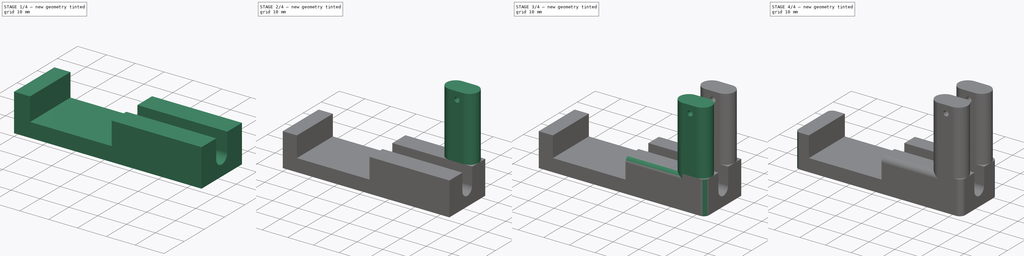
[diagram: build sequence overview — one tinted view per stage of 4, left to right]
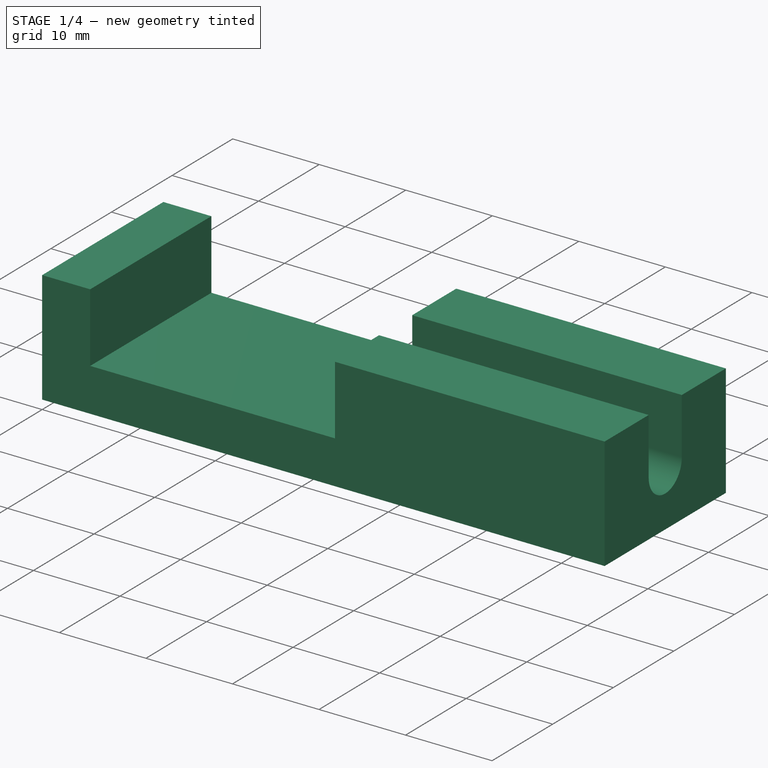
[diagram: stage 1 of 4 — iso view after this stage's code; geometry added in this stage tinted green]
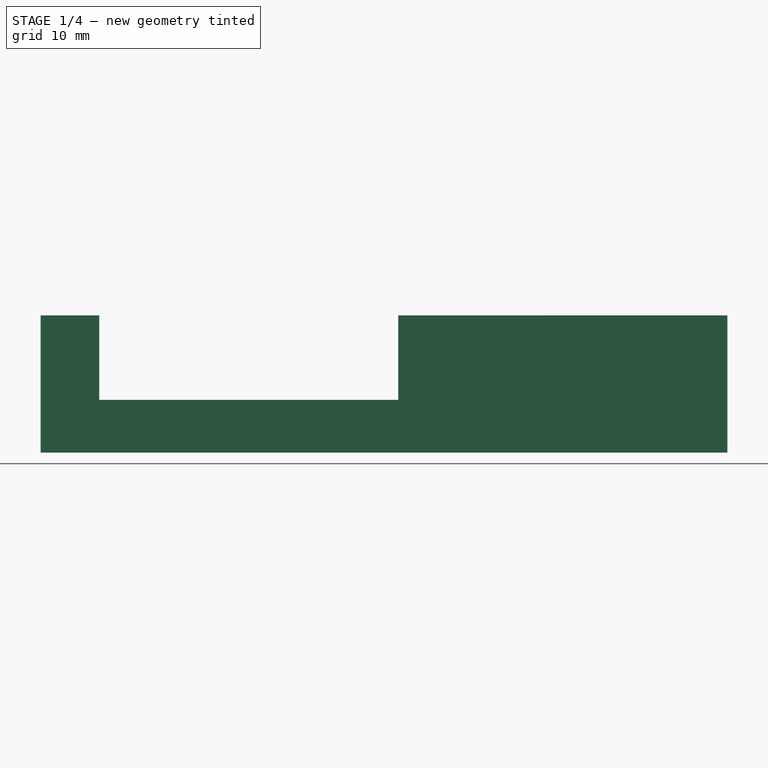
[diagram: stage 1 of 4 — front view after this stage's code; geometry added in this stage tinted green]
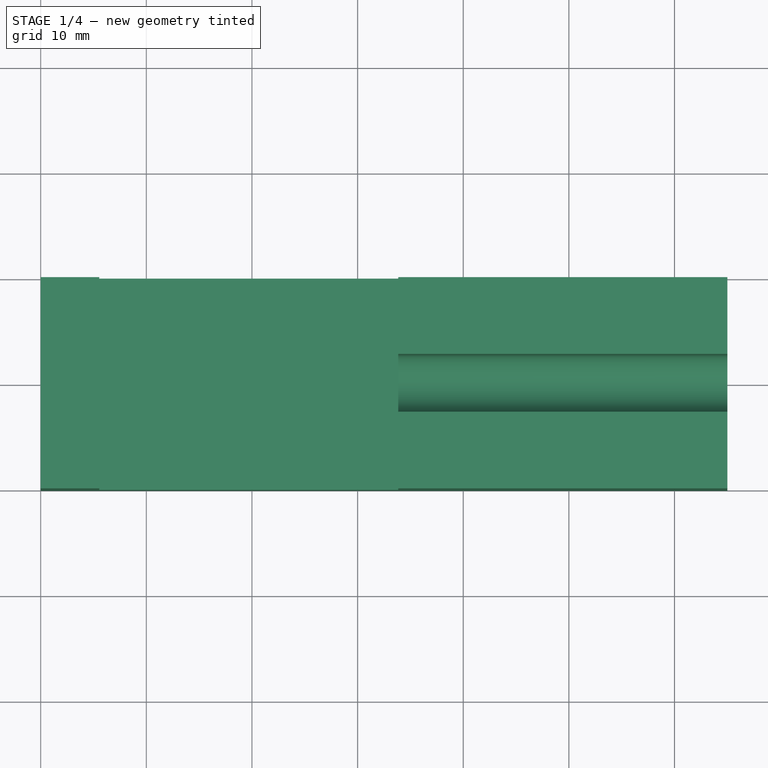
[diagram: stage 1 of 4 — top view after this stage's code; geometry added in this stage tinted green]
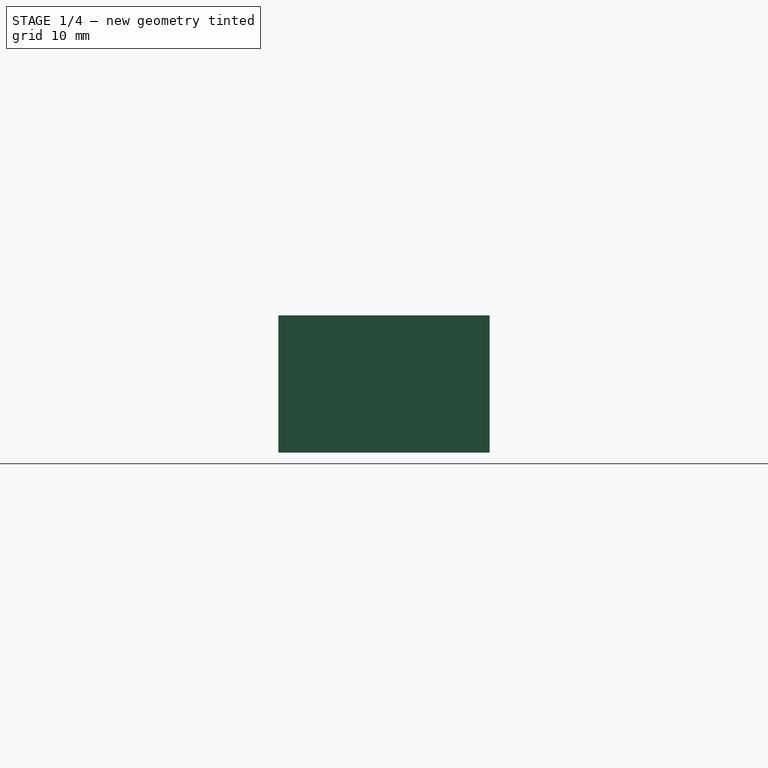
[diagram: stage 1 of 4 — right view after this stage's code; geometry added in this stage tinted green]
FCSTD DOCUMENT  (FreeCAD 0.16R6705 (Git))
Label: porta_slitta3
License: All rights reserved
LicenseURL: http://it.wikipedia.org/wiki/<copyright redacted>
objects: PartDesign::Fillet×6, Sketcher::SketchObject×5, PartDesign::Pad×3, App::MeasureDistance×3, PartDesign::Pocket×2, Part::Mirroring×1, Part::MultiFuse×1
note: 23 computed .brp shape members not serialized (recipe doc carries the construction recipe); baked Part::Feature solids carry a one-line shape summary decoded from their .brp

FEATURE [Sketcher::SketchObject] Sketch
  sketch-geometry (4):
    g0: LineSegment StartX=-30 StartY=10 StartZ=0 EndX=35 EndY=10 EndZ=0
    g1: LineSegment StartX=35 StartY=10 StartZ=0 EndX=35 EndY=-10 EndZ=0
    g2: LineSegment StartX=35 StartY=-10 StartZ=0 EndX=-30 EndY=-10 EndZ=0
    g3: LineSegment StartX=-30 StartY=-10 StartZ=0 EndX=-30 EndY=10 EndZ=0
  constraints (12):
    c: Coincident(g0,g1)
    c: Coincident(g1,g2)
    c: Coincident(g2,g3)
    c: Coincident(g3,g0)
    c: Horizontal(g0)
    c: Horizontal(g2)
    c: Vertical(g1)
    c: Vertical(g3)
    c: DistanceX(g2,g1) = 65
    c: DistanceY(g2,g0) = 20
    c: Symmetric(g1,g0,g-1)
    c: DistanceX(g2,g-1) = 30
FEATURE [PartDesign::Pad] Pad
  Length = 5
  Length2 = 100
  Sketch = -> Sketch
  Type = 0
FEATURE [Sketcher::SketchObject] Sketch001
  ExternalGeometry = -> [Pad]
  Placement = pos=(0,0,5) rot=(0,0,1;0rad)
  Support = -> Pad [Face6]
  sketch-geometry (8):
    g0: LineSegment StartX=3.84413 StartY=10 StartZ=0 EndX=35 EndY=10 EndZ=0
    g1: LineSegment StartX=35 StartY=10 StartZ=0 EndX=35 EndY=-10 EndZ=0
    g2: LineSegment StartX=35 StartY=-10 StartZ=0 EndX=3.84413 EndY=-10 EndZ=0
    g3: LineSegment StartX=3.84413 StartY=-10 StartZ=0 EndX=3.84413 EndY=10 EndZ=0
    g4: LineSegment StartX=-30 StartY=10 StartZ=0 EndX=-24.4559 EndY=10 EndZ=0
    g5: LineSegment StartX=-24.4559 StartY=10 StartZ=0 EndX=-24.4559 EndY=-10 EndZ=0
    g6: LineSegment StartX=-24.4559 StartY=-10 StartZ=0 EndX=-30 EndY=-10 EndZ=0
    g7: LineSegment StartX=-30 StartY=-10 StartZ=0 EndX=-30 EndY=10 EndZ=0
  constraints (20):
    c: Coincident(g0,g1)
    c: Coincident(g1,g2)
    c: Coincident(g2,g3)
    c: Coincident(g3,g0)
    c: Horizontal(g0)
    c: Horizontal(g2)
    c: Vertical(g1)
    c: Vertical(g3)
    c: Coincident(g-3,g1)
    c: Coincident(g4,g5)
    c: Coincident(g5,g6)
    c: Coincident(g6,g7)
    c: Coincident(g7,g4)
    c: Horizontal(g4)
    c: Horizontal(g6)
    c: Vertical(g5)
    c: Vertical(g7)
    c: Coincident(g4,g-5)
    c: Coincident(g6,g-4)
    c: DistanceX(g4,g0) = 28.3
FEATURE [PartDesign::Pad] Pad001
  Length = 8
  Length2 = 100
  Sketch = -> Sketch001
  Type = 0
FEATURE [Sketcher::SketchObject] Sketch002
  Placement = pos=(35,0,0) rot=(0.57735,0.57735,0.57735;2.0944rad)
  Support = -> Pad001 [Face9]
  sketch-geometry (4):
    g0: LineSegment StartX=-2.73443 StartY=15 StartZ=0 EndX=-2.73443 EndY=6.48783 EndZ=0
    g1: LineSegment StartX=2.73443 StartY=15 StartZ=0 EndX=2.73443 EndY=6.48783 EndZ=0
    g2: ArcOfCircle CenterX=0 CenterY=6.48783 CenterZ=0 NormalX=0 NormalY=0 NormalZ=1 Radius=2.73443 StartAngle=3.14159 EndAngle=6.28319
    g3: LineSegment StartX=-2.73443 StartY=15 StartZ=0 EndX=2.73443 EndY=15 EndZ=0
FEATURE [PartDesign::Pocket] Pocket
  Length = 5
  Sketch = -> Sketch002
  Type = 2
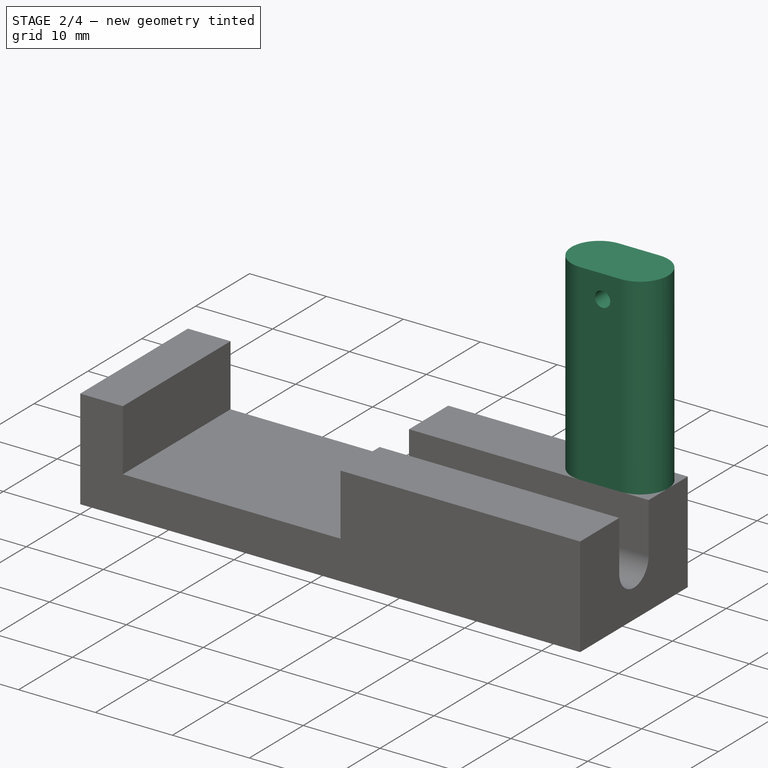
[diagram: stage 2 of 4 — iso view after this stage's code; geometry added in this stage tinted green]
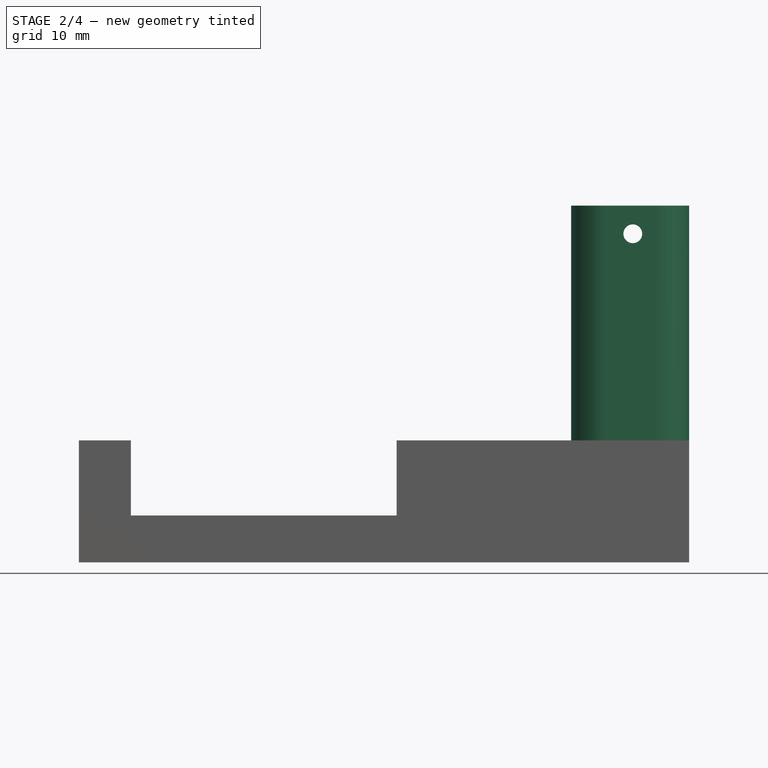
[diagram: stage 2 of 4 — front view after this stage's code; geometry added in this stage tinted green]
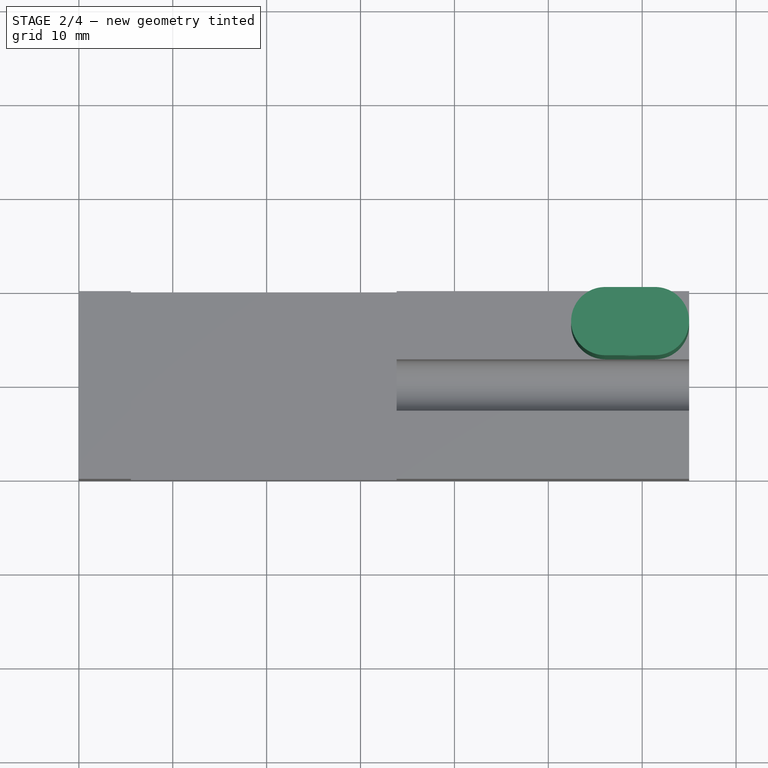
[diagram: stage 2 of 4 — top view after this stage's code; geometry added in this stage tinted green]
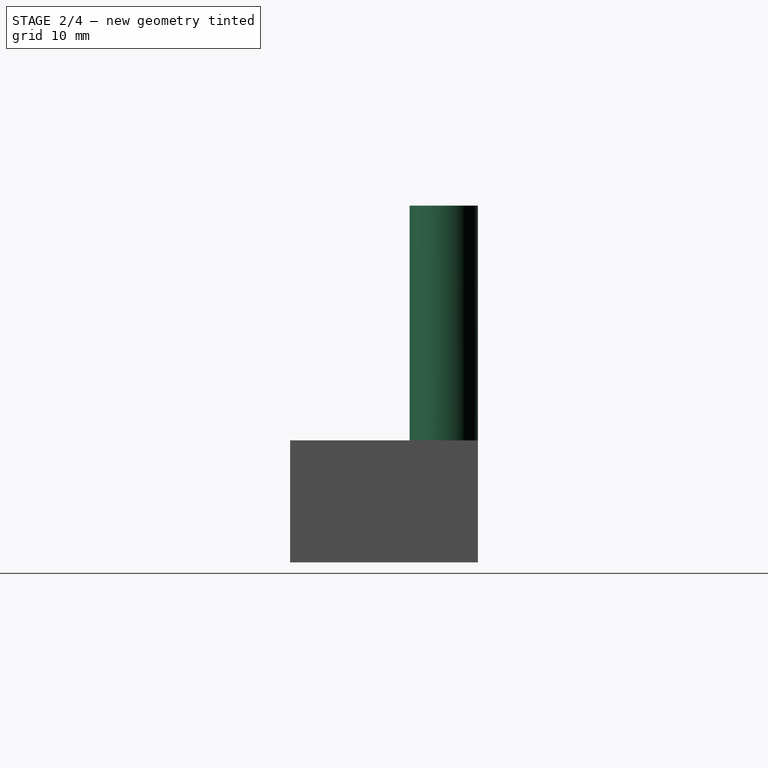
[diagram: stage 2 of 4 — right view after this stage's code; geometry added in this stage tinted green]
FEATURE [Sketcher::SketchObject] Sketch004
  ExternalGeometry = -> [Pocket]
  Placement = pos=(0,0,13) rot=(0,0,1;0rad)
  Support = -> Pocket [Face21]
  sketch-geometry (4):
    g0: ArcOfCircle CenterX=26.0606 CenterY=-6.36722 CenterZ=0 NormalX=0 NormalY=0 NormalZ=1 Radius=3.63278 StartAngle=1.5708 EndAngle=4.71239
    g1: ArcOfCircle CenterX=31.3672 CenterY=-6.36722 CenterZ=0 NormalX=0 NormalY=0 NormalZ=1 Radius=3.63278 StartAngle=4.71239 EndAngle=7.85398
    g2: LineSegment StartX=26.0606 StartY=-10 StartZ=0 EndX=31.3672 EndY=-10 EndZ=0
    g3: LineSegment StartX=26.0606 StartY=-2.73443 StartZ=0 EndX=31.3672 EndY=-2.73443 EndZ=0
  constraints (9):
    c: Tangent(g0,g3) = 1.5708
    c: Tangent(g0,g2) = -1.5708
    c: Tangent(g2,g1) = -1.5708
    c: Tangent(g3,g1) = 1.5708
    c: Horizontal(g2)
    c: Equal(g0,g1)
    c: PointOnObject(g0,g-3)
    c: PointOnObject(g0,g-4)
    c: Tangent(g1,g-5)
FEATURE [PartDesign::Pad] Pad002
  Length = 25
  Length2 = 100
  Sketch = -> Sketch004
  Type = 0
FEATURE [Sketcher::SketchObject] Sketch003
  Placement = pos=(0,-10,0) rot=(1,0,0;1.5708rad)
  Support = -> Pad002 [Face3]
  sketch-geometry (1):
    g0: Circle CenterX=29 CenterY=35 CenterZ=0 NormalX=0 NormalY=0 NormalZ=1 Radius=1
  constraints (3):
    c: Radius(g0) = 1
    c: DistanceY(g-1,g0) = 35
    c: DistanceX(g-1,g0) = 29
FEATURE [PartDesign::Pocket] Pocket001
  Length = 5
  Sketch = -> Sketch003
  Type = 1
FEATURE [Part::Mirroring] Part__Mirroring  label="Pocket001 (Mirror #1)"
  Base = (0,0,0)
  Normal = (0,1,0)
  Source = -> Pocket001
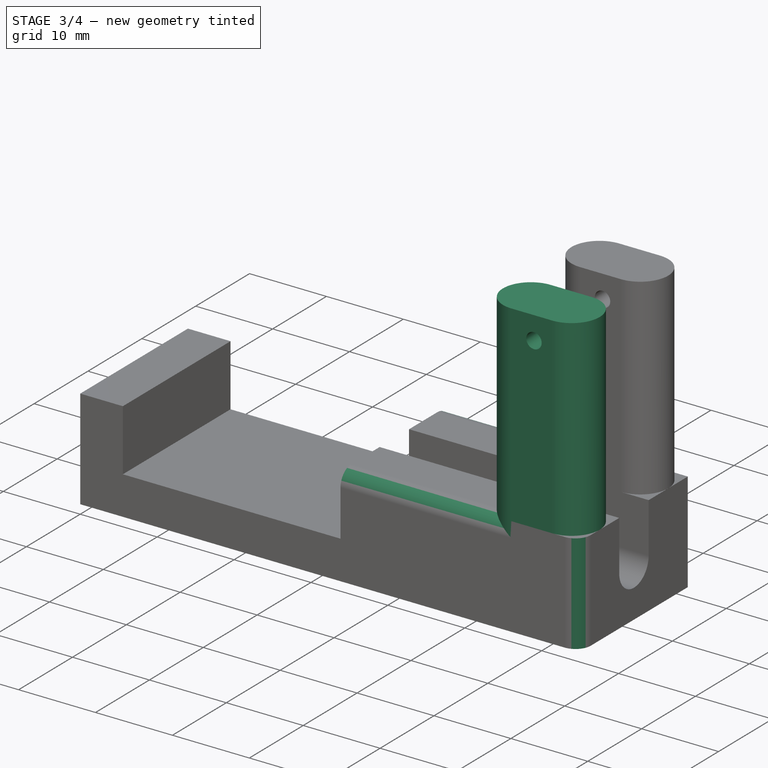
[diagram: stage 3 of 4 — iso view after this stage's code; geometry added in this stage tinted green]
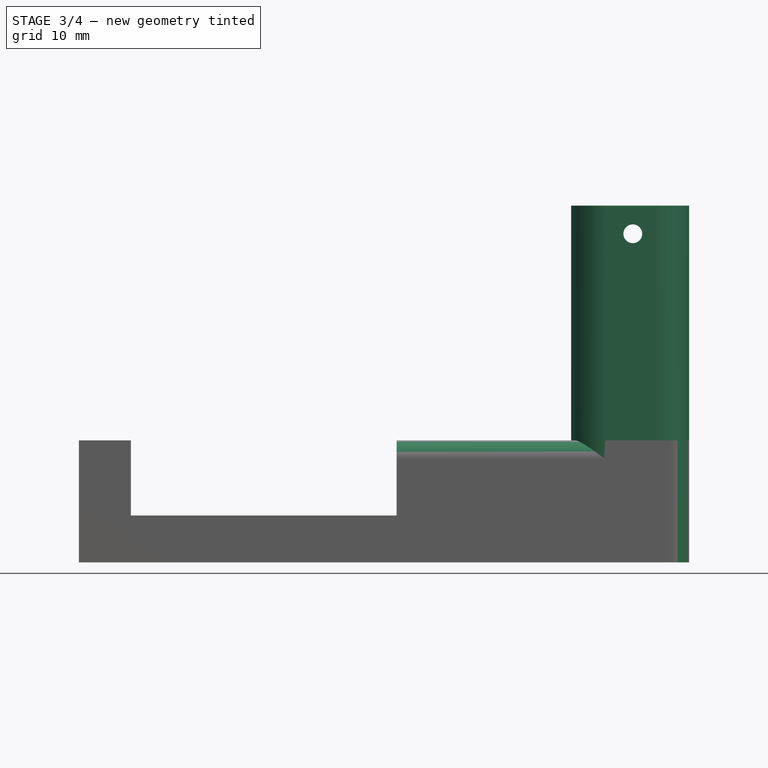
[diagram: stage 3 of 4 — front view after this stage's code; geometry added in this stage tinted green]
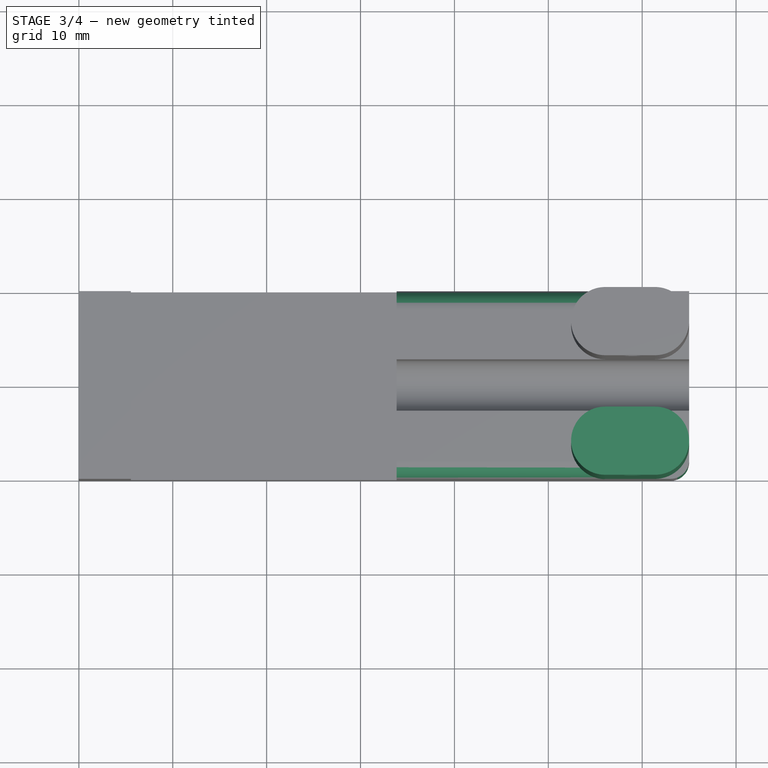
[diagram: stage 3 of 4 — top view after this stage's code; geometry added in this stage tinted green]
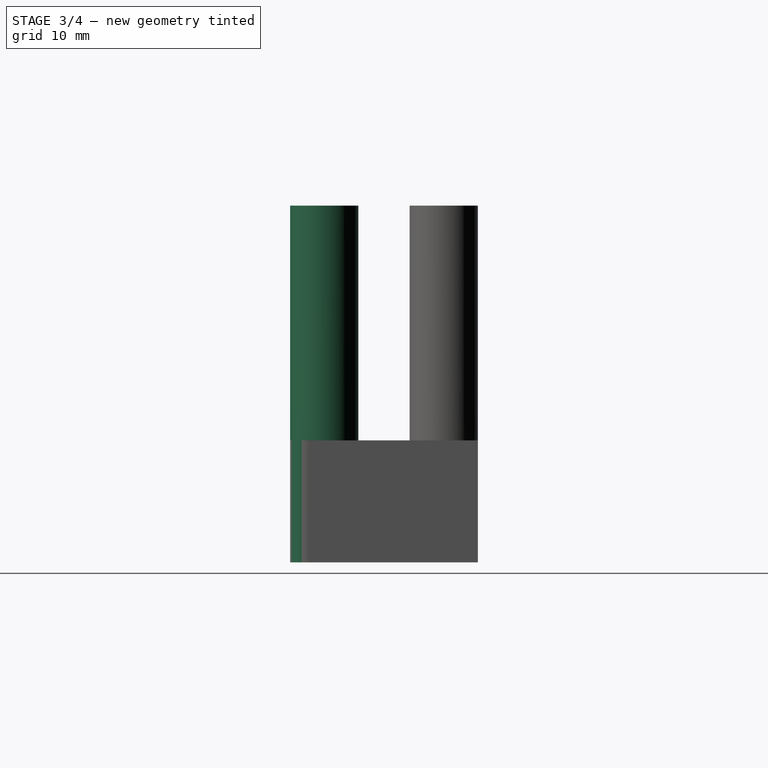
[diagram: stage 3 of 4 — right view after this stage's code; geometry added in this stage tinted green]
FEATURE [Part::MultiFuse] Fusion
  Shapes = -> [Pocket001,Part__Mirroring]
FEATURE [PartDesign::Fillet] Fillet
  Base = -> Fusion [Edge18]
  Radius = 2
FEATURE [PartDesign::Fillet] Fillet001
  Base = -> Fillet [Edge79]
  Radius = 2
FEATURE [PartDesign::Fillet] Fillet002
  Base = -> Fillet001 [Edge59]
  Radius = 2
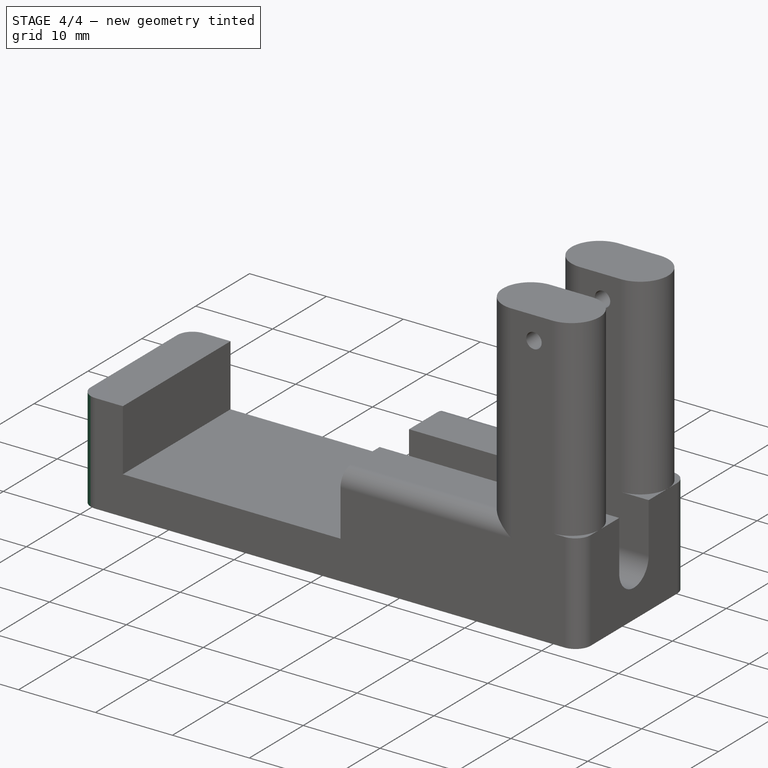
[diagram: stage 4 of 4 — iso view after this stage's code; geometry added in this stage tinted green]
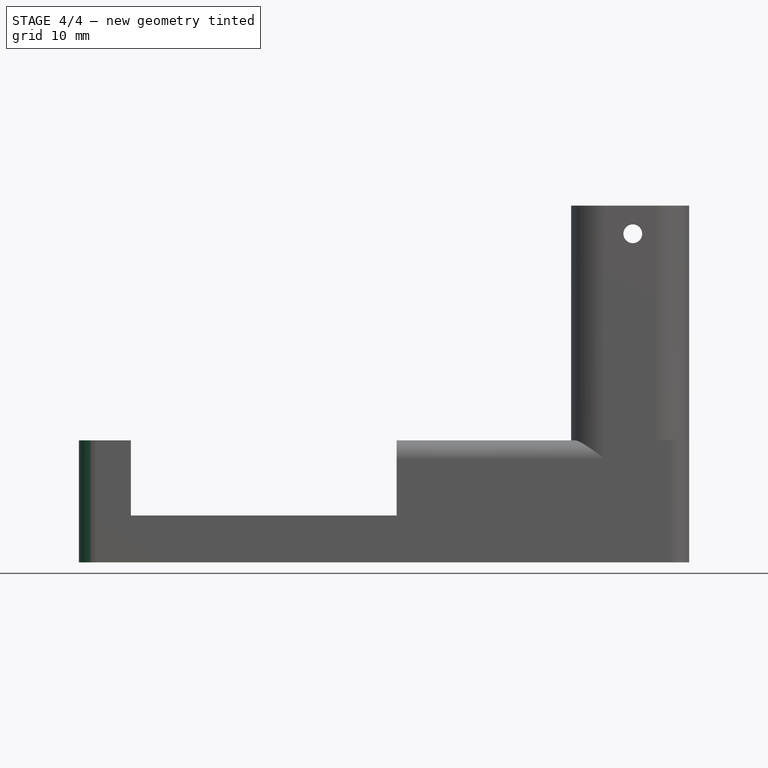
[diagram: stage 4 of 4 — front view after this stage's code; geometry added in this stage tinted green]
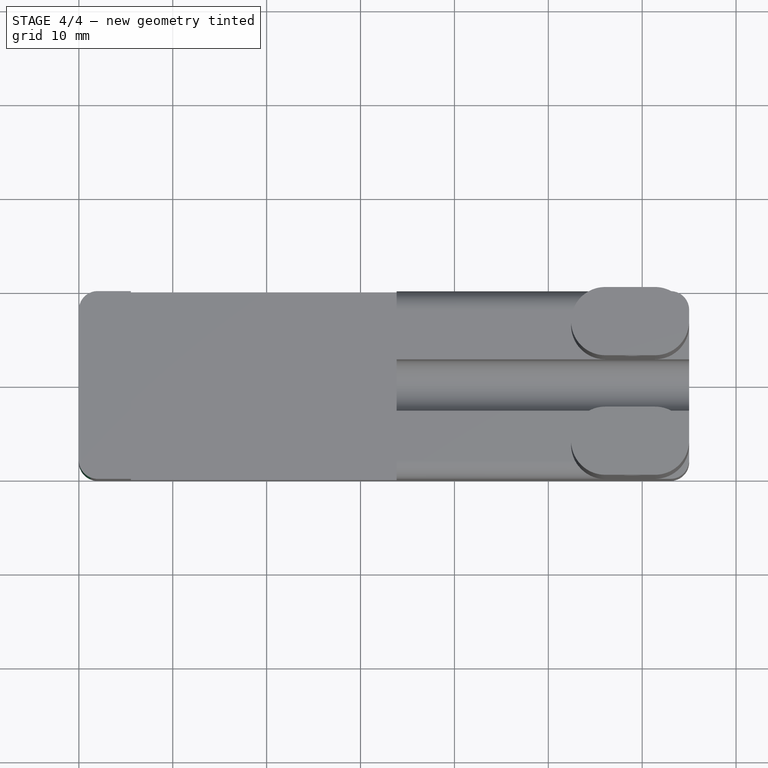
[diagram: stage 4 of 4 — top view after this stage's code; geometry added in this stage tinted green]
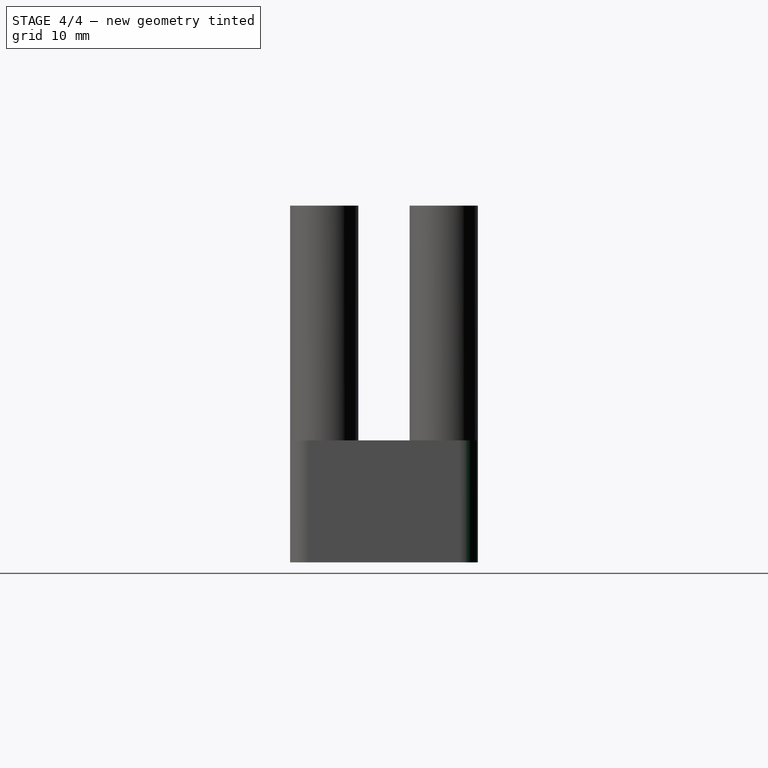
[diagram: stage 4 of 4 — right view after this stage's code; geometry added in this stage tinted green]
FEATURE [PartDesign::Fillet] Fillet003
  Base = -> Fillet002 [Edge67]
  Radius = 2
FEATURE [PartDesign::Fillet] Fillet004
  Base = -> Fillet003 [Edge63]
  Radius = 2
FEATURE [PartDesign::Fillet] Fillet005
  Base = -> Fillet004 [Edge45]
  Radius = 2
FEATURE [App::MeasureDistance] Distance  label="Distance: 28,3 mm"
  Distance = 28.3
  P1 = (-24.4559,-10,8.82058)
  P2 = (3.84413,-10,8.82058)
FEATURE [App::MeasureDistance] Distance001  label="Distance: 57,4599 mm"
  Distance = 57.4599
  P1 = (-24.4559,-10,8.95615)
  P2 = (33,-10,8.2783)
FEATURE [App::MeasureDistance] Distance002  label="Distance: 38 mm"
  Distance = 38
  P1 = (29.7949,-10,38)
  P2 = (29.7949,-10,0)
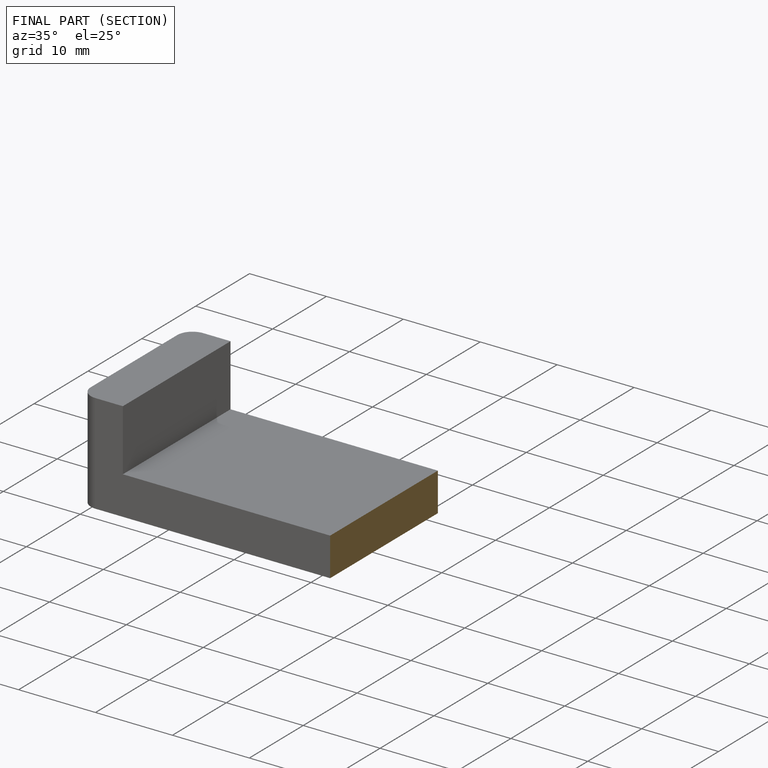
[diagram: finished part — half-section view (interior)]
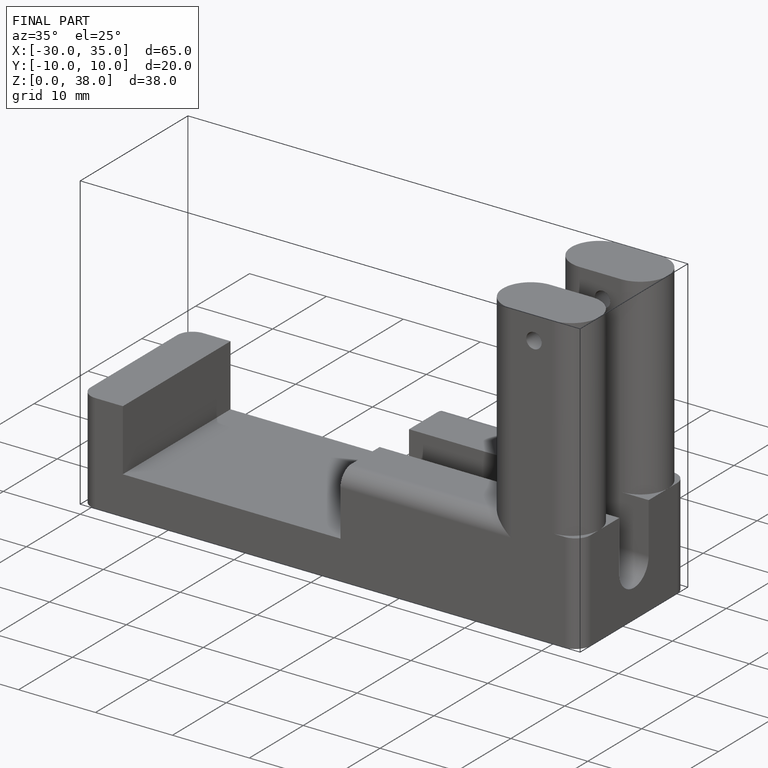
[diagram: finished part — iso view with bounding-box wireframe]
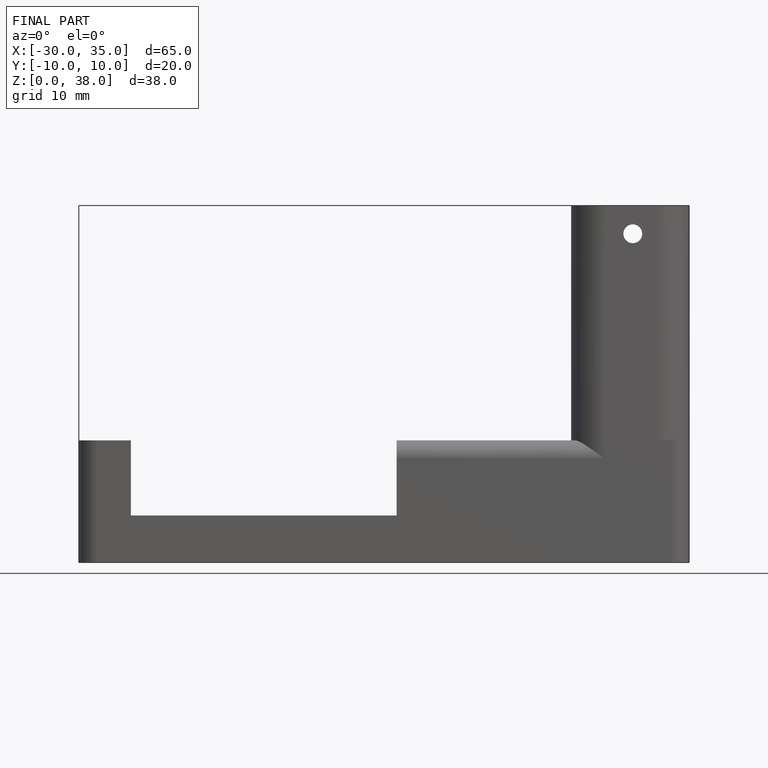
[diagram: finished part — front view with bounding-box wireframe]
